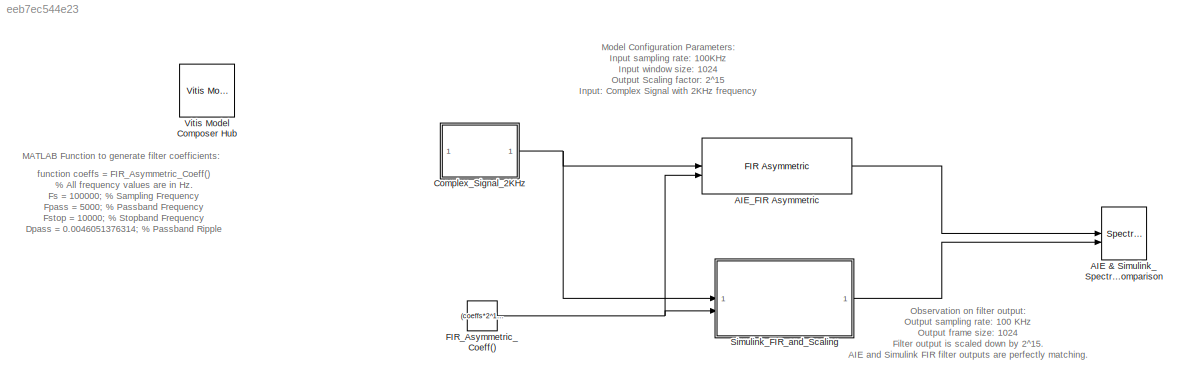
MODEL slx_eeb7ec544e23
KIND model
CONFIG AbsTol = auto
CONFIG EnableMultiTasking = off
CONFIG FixedStep = auto
CONFIG MaxStep = auto
CONFIG MinStep = auto
CONFIG PostLoadFcn = % All frequency values are in Hz.\nFs = 100000;  % Sampling Frequency\nFpass = 5000;              % Passband Frequency\nFstop = 10000;             % Stopband Frequency\nDpass = 0.0046051376314;   % Passband Ripple\nDstop = 0.00025118864315;  % Stopband Attenuation\ndens  = 16;                % Density Factor\n% Calculate the order from the parameters using FIRPMORD.\n[N, Fo, Ao, W] = firpmord([Fpass, Fsto...<+127ch>
CONFIG RelTol = 1e-3
CONFIG SampleTimeConstraint = Unconstrained
CONFIG SolverName = VariableStepAuto
CONFIG StartTime = 0.0
CONFIG StopTime = 0.5
BLOCK [SpectrumAnalyzer] AIE & Simulink_Spectrum_Comparison
  AllowFFTLengthLessThanSamplesPerUpdate = on
  AveragingMethod = Exponential
  ChannelNames = [""]
  DefaultConfigurationName = spbscopes.SpectrumAnalyzerBlockCfg
  NumInputPorts = 2
  ScopeSpecificationString = spbscopes.SpectrumAnalyzerBlockCfg('CurrentConfiguration', extmgr.ConfigurationSet(extmgr.Configuration('Core','General UI',true,'FigureColor',[0.16        0.16        0.16]),extmgr.Configuration('Visuals','Spectrum',true,'Title','','YLabel','','MinYLim','47.017','MaxYLim','117.8266','Legend',true,'AxesProperties',struct('XGrid',{'on','on'},'YGrid',{'on','on'},'ZGrid',{'on','on'},'Color',{[0 0 0],...<+2399ch>
  ShowLegend = on
  WasSavedAsWebScope = on
BLOCK [Reference] AIE_FIR Asymmetric  REF=aieDSP/FIR Asymmetric
  SourceBlock = aieDSP/FIR Asymmetric
  SourceType = FIR Asymmetric
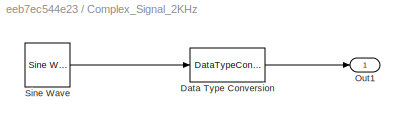
BLOCK [SubSystem] Complex_Signal_2KHz
BLOCK [DataTypeConversion] Complex_Signal_2KHz/Data Type Conversion
  ConvertRealWorld = Stored Integer (SI)
  OutDataTypeStr = int16
  RndMeth = Floor
  SaturateOnIntegerOverflow = off
BLOCK [Outport] Complex_Signal_2KHz/Out1
BLOCK [Reference] Complex_Signal_2KHz/Sine Wave  REF=dspsrcs4/Sine Wave
  SourceBlock = dspsrcs4/Sine Wave
  SourceType = Sine Wave
BLOCK [Constant] FIR_Asymmetric_Coeff()
  OutDataTypeStr = int16
  Value = (coeffs*2^15)
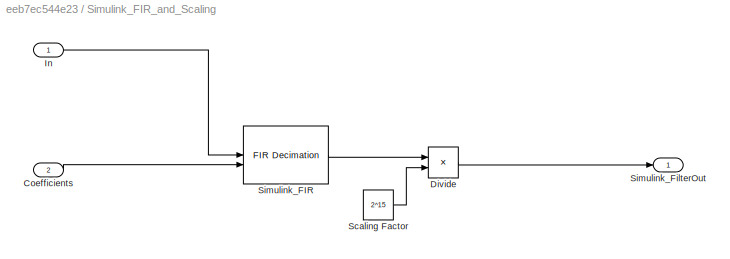
BLOCK [SubSystem] Simulink_FIR_and_Scaling
BLOCK [Inport] Simulink_FIR_and_Scaling/Coefficients
  Port = 2
BLOCK [Product] Simulink_FIR_and_Scaling/Divide
  Inputs = */
  OutDataTypeStr = int16
BLOCK [Inport] Simulink_FIR_and_Scaling/In
BLOCK [Constant] Simulink_FIR_and_Scaling/Scaling Factor
  OutDataTypeStr = int16
  Value = 2^15
BLOCK [Reference] Simulink_FIR_and_Scaling/Simulink_FIR  REF=dspmlti4/FIR
Decimation
  SourceBlock = dspmlti4/FIR\nDecimation
  SourceType = FIR Decimation
  UserDataPersistent = on
BLOCK [Outport] Simulink_FIR_and_Scaling/Simulink_FilterOut
BLOCK [Reference] Vitis Model Composer Hub  REF=vmcUtilities/Vitis Model Composer Hub
  SourceBlock = vmcUtilities/Vitis Model Composer Hub
  SourceType = VMC Hub
  Tag = genX
  UserDataPersistent = on
ANNOTATION (root): function coeffs = FIR_Asymmetric_Coeff() % All frequency values are in Hz. Fs = 100000; % Sampling Frequency Fpass = 5000; % Passband Frequency Fstop = 10000; % Stopband Frequency Dpass = 0.0046051376314; % Passband Ripple Dstop = 0.00025118864315; % Stopband Attenuation dens = 16; % Density Factor % Calculate the order from the parameters using FIRPMORD. [N, Fo, Ao, W] = firpmord([Fpass, Fstop]/(...<+127ch>
ANNOTATION (root): Model Configuration Parameters: Input sampling rate: 100KHz Input window size: 1024 Output Scaling factor: 2^15 Input: Complex Signal with 2KHz frequency
ANNOTATION (root): Observation on filter output: Output sampling rate: 100 KHz Output frame size: 1024 Filter output is scaled down by 2^15. AIE and Simulink FIR filter outputs are perfectly matching.
ANNOTATION (root): MATLAB Function to generate filter coefficients:
LINE AIE_FIR Asymmetric:1 -> AIE & Simulink_Spectrum_Comparison:1
LINE Complex_Signal_2KHz/Data Type Conversion:1 -> Complex_Signal_2KHz/Out1:1
LINE Complex_Signal_2KHz/Sine Wave:1 -> Complex_Signal_2KHz/Data Type Conversion:1
NET Complex_Signal_2KHz:1 -> AIE_FIR Asymmetric:1, Simulink_FIR_and_Scaling:1
NET FIR_Asymmetric_Coeff():1 -> AIE_FIR Asymmetric:2, Simulink_FIR_and_Scaling:2
LINE Simulink_FIR_and_Scaling/Coefficients:1 -> Simulink_FIR_and_Scaling/Simulink_FIR:2
LINE Simulink_FIR_and_Scaling/Divide:1 -> Simulink_FIR_and_Scaling/Simulink_FilterOut:1
LINE Simulink_FIR_and_Scaling/In:1 -> Simulink_FIR_and_Scaling/Simulink_FIR:1
LINE Simulink_FIR_and_Scaling/Scaling Factor:1 -> Simulink_FIR_and_Scaling/Divide:2
LINE Simulink_FIR_and_Scaling/Simulink_FIR:1 -> Simulink_FIR_and_Scaling/Divide:1
LINE Simulink_FIR_and_Scaling:1 -> AIE & Simulink_Spectrum_Comparison:2
note: NET lines group one-source signal fan-out (src -> all destinations, sorted); 1:1 wires keep LINE
